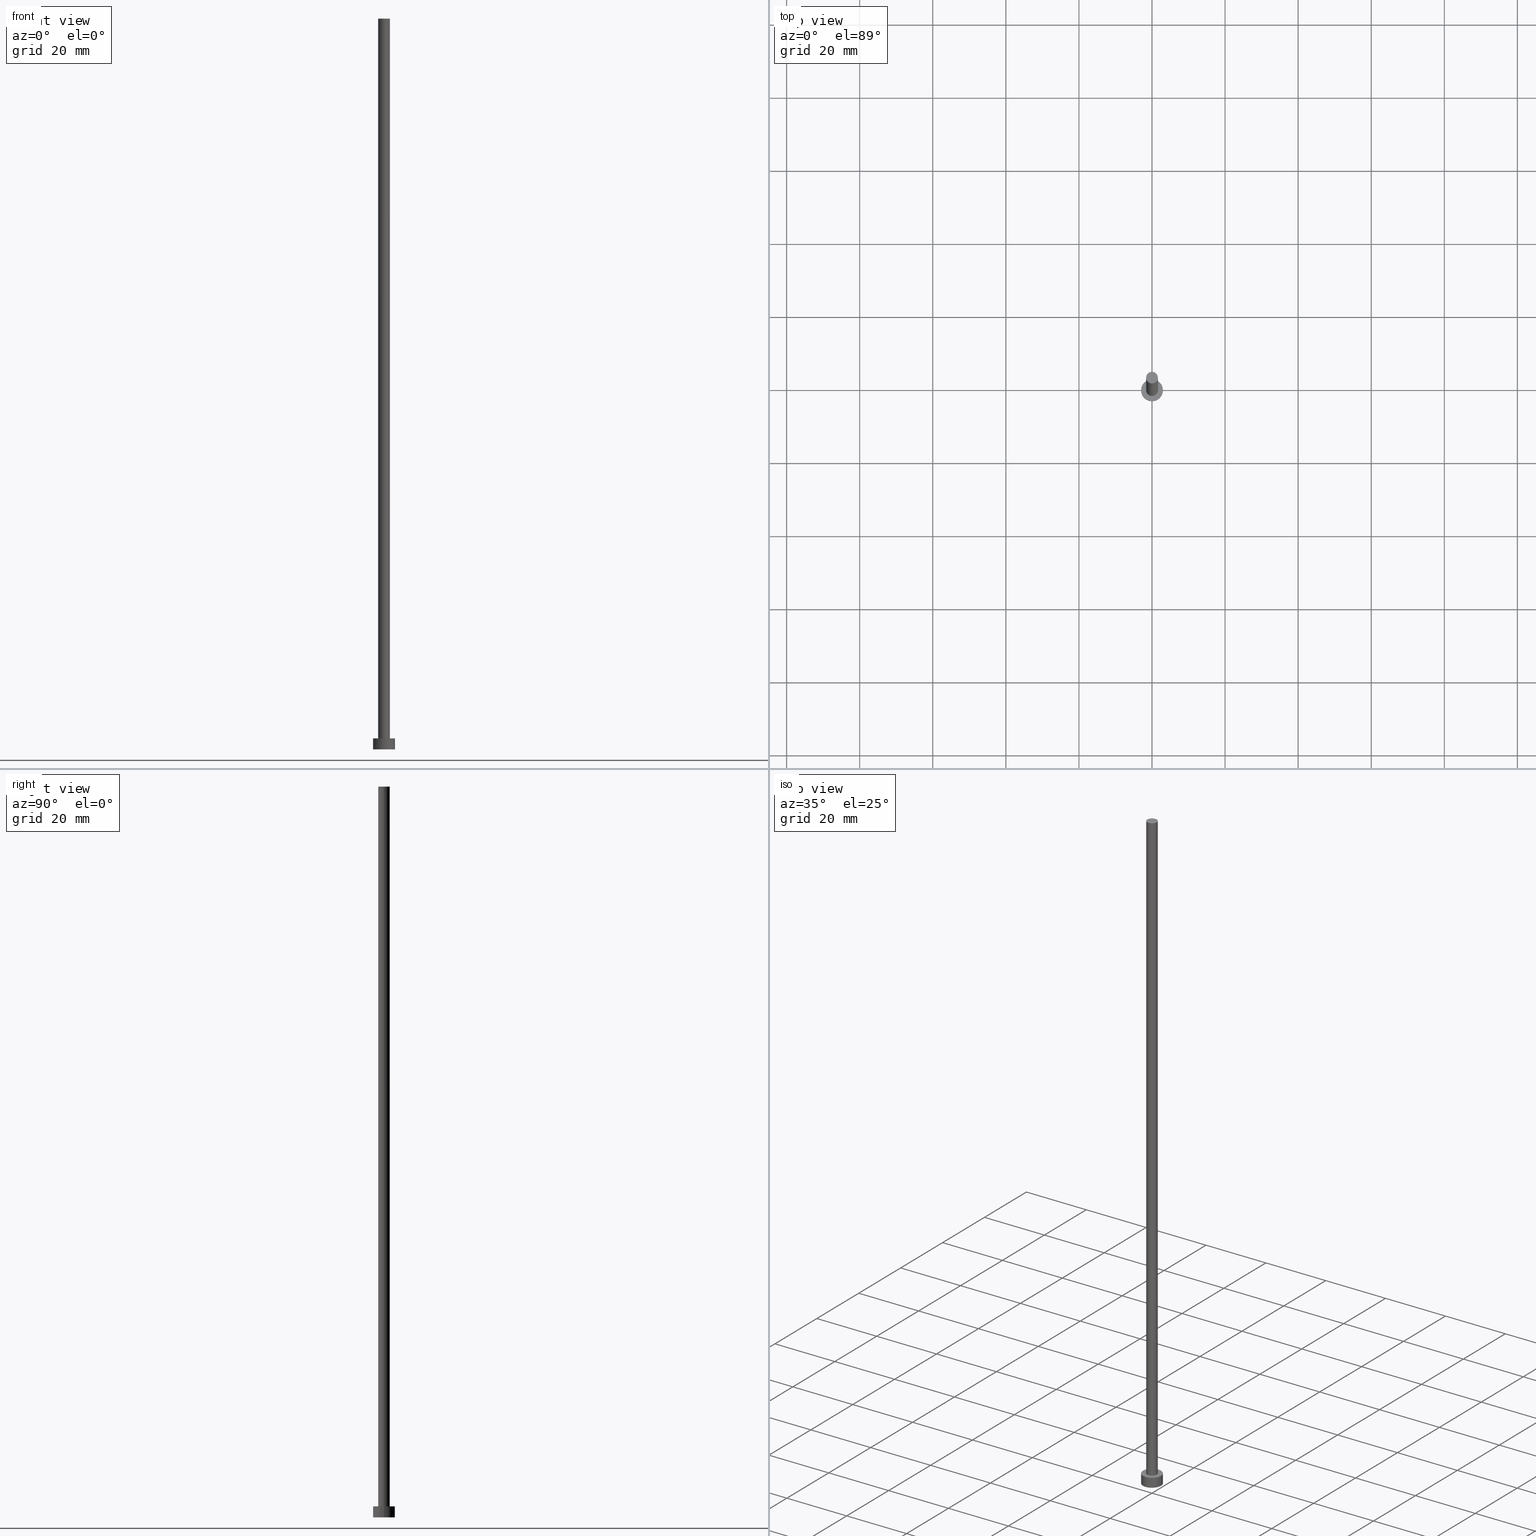
[diagram: canonical four-view strip — front | top / right | iso, engineering-drawing reading convention]
A machine part, canonical four-view strip (front | top / right | iso — engineering-drawing reading convention). The complete STEP part file that produces these views, byte-faithful:
ISO-10303-21;
HEADER;
FILE_DESCRIPTION (( 'STEP AP203' ),
    '1' );
FILE_NAME ('858f.STEP',
    '2023-02-13T14:25:23',
    ( '' ),
    ( '' ),
    'SwSTEP 2.0',
    'SolidWorks 2019',
    '' );
FILE_SCHEMA (( 'CONFIG_CONTROL_DESIGN' ));
ENDSEC;

DATA;
#1 = PLANE ( 'NONE',  #60 ) ;
#2 = MECHANICAL_CONTEXT ( 'NONE', #23, 'mechanical' ) ;
#3 = DIRECTION ( 'NONE',  ( 1.000000000000000000, 0.000000000000000000, 0.000000000000000000 ) ) ;
#4 =( NAMED_UNIT ( * ) PLANE_ANGLE_UNIT ( ) SI_UNIT ( $, .RADIAN. ) );
#5 = APPLICATION_PROTOCOL_DEFINITION ( 'international standard', 'config_control_design', 1994, #158 ) ;
#6 = CC_DESIGN_PERSON_AND_ORGANIZATION_ASSIGNMENT ( #119, #46, ( #171 ) ) ;
#7 = APPROVAL_PERSON_ORGANIZATION ( #50, #239, #198 ) ;
#8 = DESIGN_CONTEXT ( 'detailed design', #158, 'design' ) ;
#9 = ORIENTED_EDGE ( 'NONE', *, *, #53, .F. ) ;
#10 = ORIENTED_EDGE ( 'NONE', *, *, #122, .T. ) ;
#11 = CIRCLE ( 'NONE', #212, 1.600000000000000089 ) ;
#12 = EDGE_LOOP ( 'NONE', ( #34, #13, #127, #224 ) ) ;
#13 = ORIENTED_EDGE ( 'NONE', *, *, #71, .T. ) ;
#14 = ORIENTED_EDGE ( 'NONE', *, *, #167, .T. ) ;
#15 = CARTESIAN_POINT ( 'NONE',  ( 0.000000000000000000, 0.000000000000000000, 200.0000000000000000 ) ) ;
#16 = ADVANCED_FACE ( 'NONE', ( #106 ), #188, .F. ) ;
#17 = DIRECTION ( 'NONE',  ( -1.000000000000000000, 0.000000000000000000, 0.000000000000000000 ) ) ;
#18 = DIRECTION ( 'NONE',  ( 0.000000000000000000, 0.000000000000000000, 1.000000000000000000 ) ) ;
#19 = EDGE_CURVE ( 'NONE', #144, #247, #230, .T. ) ;
#20 = CARTESIAN_POINT ( 'NONE',  ( -3.000000000000000444, 0.000000000000000000, 3.000000000000000000 ) ) ;
#21 = DIRECTION ( 'NONE',  ( 1.000000000000000000, 0.000000000000000000, 0.000000000000000000 ) ) ;
#22 = APPROVAL_DATE_TIME ( #179, #252 ) ;
#23 = APPLICATION_CONTEXT ( 'configuration controlled 3d designs of mechanical parts and assemblies' ) ;
#24 = EDGE_CURVE ( 'NONE', #90, #147, #125, .T. ) ;
#25 = CARTESIAN_POINT ( 'NONE',  ( 0.000000000000000000, 0.000000000000000000, 0.000000000000000000 ) ) ;
#26 = LOCAL_TIME ( 15, 25, 23.00000000000000000, #29 ) ;
#27 = DIRECTION ( 'NONE',  ( 0.000000000000000000, 0.000000000000000000, 1.000000000000000000 ) ) ;
#28 = PRODUCT_DEFINITION ( 'NEZN�M�', '', #171, #8 ) ;
#29 = COORDINATED_UNIVERSAL_TIME_OFFSET ( 1, 0, .AHEAD. ) ;
#30 = AXIS2_PLACEMENT_3D ( 'NONE', #170, #52, #207 ) ;
#31 = VECTOR ( 'NONE', #116, 1000.000000000000000 ) ;
#32 = DIRECTION ( 'NONE',  ( 0.000000000000000000, 0.000000000000000000, 1.000000000000000000 ) ) ;
#33 = VERTEX_POINT ( 'NONE', #86 ) ;
#34 = ORIENTED_EDGE ( 'NONE', *, *, #140, .F. ) ;
#35 = ADVANCED_FACE ( 'NONE', ( #223, #204 ), #103, .T. ) ;
#36 = AXIS2_PLACEMENT_3D ( 'NONE', #231, #172, #62 ) ;
#37 = ORIENTED_EDGE ( 'NONE', *, *, #88, .F. ) ;
#38 = ORIENTED_EDGE ( 'NONE', *, *, #24, .T. ) ;
#39 = DIRECTION ( 'NONE',  ( -0.000000000000000000, -0.000000000000000000, -1.000000000000000000 ) ) ;
#40 = DIRECTION ( 'NONE',  ( -0.000000000000000000, -0.000000000000000000, -1.000000000000000000 ) ) ;
#41 = APPROVAL_PERSON_ORGANIZATION ( #67, #181, #65 ) ;
#42 = DIRECTION ( 'NONE',  ( -0.000000000000000000, -0.000000000000000000, -1.000000000000000000 ) ) ;
#43 = PRODUCT_DEFINITION_SHAPE ( 'NONE', 'NONE',  #28 ) ;
#44 = CYLINDRICAL_SURFACE ( 'NONE', #227, 1.600000000000000089 ) ;
#45 = LINE ( 'NONE', #129, #31 ) ;
#46 = PERSON_AND_ORGANIZATION_ROLE ( 'design_supplier' ) ;
#47 = ADVANCED_FACE ( 'NONE', ( #135 ), #44, .T. ) ;
#48 = COORDINATED_UNIVERSAL_TIME_OFFSET ( 1, 0, .AHEAD. ) ;
#49 = VECTOR ( 'NONE', #78, 1000.000000000000000 ) ;
#50 = PERSON_AND_ORGANIZATION ( #98, #117 ) ;
#51 = COORDINATED_UNIVERSAL_TIME_OFFSET ( 1, 0, .AHEAD. ) ;
#52 = DIRECTION ( 'NONE',  ( 0.000000000000000000, 0.000000000000000000, 1.000000000000000000 ) ) ;
#53 = EDGE_CURVE ( 'NONE', #164, #108, #142, .T. ) ;
#54 = ORIENTED_EDGE ( 'NONE', *, *, #137, .F. ) ;
#55 = ORIENTED_EDGE ( 'NONE', *, *, #130, .F. ) ;
#56 = ORIENTED_EDGE ( 'NONE', *, *, #88, .T. ) ;
#57 = CC_DESIGN_PERSON_AND_ORGANIZATION_ASSIGNMENT ( #82, #99, ( #28 ) ) ;
#58 = DIRECTION ( 'NONE',  ( 1.000000000000000000, 0.000000000000000000, 0.000000000000000000 ) ) ;
#59 = DIRECTION ( 'NONE',  ( 0.000000000000000000, 0.000000000000000000, 1.000000000000000000 ) ) ;
#60 = AXIS2_PLACEMENT_3D ( 'NONE', #173, #18, #210 ) ;
#61 = DIRECTION ( 'NONE',  ( 1.000000000000000000, 0.000000000000000000, 0.000000000000000000 ) ) ;
#62 = DIRECTION ( 'NONE',  ( 1.000000000000000000, 0.000000000000000000, -0.000000000000000000 ) ) ;
#63 = CARTESIAN_POINT ( 'NONE',  ( -1.600000000000000089, 0.000000000000000000, 3.000000000000000000 ) ) ;
#64 = ADVANCED_FACE ( 'NONE', ( #91 ), #93, .T. ) ;
#65 = APPROVAL_ROLE ( '' ) ;
#66 = DATE_TIME_ROLE ( 'creation_date' ) ;
#67 = PERSON_AND_ORGANIZATION ( #98, #117 ) ;
#68 = EDGE_LOOP ( 'NONE', ( #9, #10, #38, #248 ) ) ;
#69 = EDGE_LOOP ( 'NONE', ( #141, #55 ) ) ;
#70 = ORIENTED_EDGE ( 'NONE', *, *, #126, .F. ) ;
#71 = EDGE_CURVE ( 'NONE', #143, #33, #131, .T. ) ;
#72 = ORIENTED_EDGE ( 'NONE', *, *, #156, .T. ) ;
#73 = AXIS2_PLACEMENT_3D ( 'NONE', #25, #27, #3 ) ;
#74 = DIRECTION ( 'NONE',  ( -0.000000000000000000, -0.000000000000000000, -1.000000000000000000 ) ) ;
#75 = CARTESIAN_POINT ( 'NONE',  ( 0.000000000000000000, 0.000000000000000000, 3.000000000000000000 ) ) ;
#76 = CARTESIAN_POINT ( 'NONE',  ( 1.600000000000000089, 1.959434878635765230E-16, 200.0000000000000000 ) ) ;
#77 = CC_DESIGN_APPROVAL ( #252, ( #171 ) ) ;
#78 = DIRECTION ( 'NONE',  ( -0.000000000000000000, -0.000000000000000000, -1.000000000000000000 ) ) ;
#79 = LINE ( 'NONE', #76, #233 ) ;
#80 = DATE_TIME_ROLE ( 'classification_date' ) ;
#81 = SECURITY_CLASSIFICATION ( '', '', #184 ) ;
#82 = PERSON_AND_ORGANIZATION ( #98, #117 ) ;
#83 = DATE_AND_TIME ( #157, #238 ) ;
#84 = CALENDAR_DATE ( 2023, 13, 2 ) ;
#85 = CALENDAR_DATE ( 2023, 13, 2 ) ;
#86 = CARTESIAN_POINT ( 'NONE',  ( 3.000000000000000444, 3.673940397442060361E-16, 0.000000000000000000 ) ) ;
#87 = ADVANCED_FACE ( 'NONE', ( #153 ), #1, .T. ) ;
#88 = EDGE_CURVE ( 'NONE', #144, #143, #183, .T. ) ;
#89 = DIRECTION ( 'NONE',  ( -0.000000000000000000, -0.000000000000000000, -1.000000000000000000 ) ) ;
#90 = VERTEX_POINT ( 'NONE', #194 ) ;
#91 = FACE_OUTER_BOUND ( 'NONE', #12, .T. ) ;
#92 = CARTESIAN_POINT ( 'NONE',  ( -1.600000000000000089, 0.000000000000000000, 200.0000000000000000 ) ) ;
#93 = CYLINDRICAL_SURFACE ( 'NONE', #217, 3.000000000000000444 ) ;
#94 = CYLINDRICAL_SURFACE ( 'NONE', #121, 1.600000000000000089 ) ;
#95 = ADVANCED_FACE ( 'NONE', ( #255 ), #94, .T. ) ;
#96 = FACE_OUTER_BOUND ( 'NONE', #205, .T. ) ;
#97 = PERSON_AND_ORGANIZATION_ROLE ( 'classification_officer' ) ;
#98 = PERSON ( 'NEUR�EN�', 'NEUR�EN�', 'NEUR�EN�', ('NEUR�EN�'), ('NEUR�EN�'), ('NEUR�EN�') ) ;
#99 = PERSON_AND_ORGANIZATION_ROLE ( 'creator' ) ;
#100 = CC_DESIGN_SECURITY_CLASSIFICATION ( #81, ( #171 ) ) ;
#101 = PERSON_AND_ORGANIZATION ( #98, #117 ) ;
#102 = ORIENTED_EDGE ( 'NONE', *, *, #137, .T. ) ;
#103 = PLANE ( 'NONE',  #36 ) ;
#104 = ORIENTED_EDGE ( 'NONE', *, *, #140, .T. ) ;
#105 = CC_DESIGN_APPROVAL ( #181, ( #81 ) ) ;
#106 = FACE_OUTER_BOUND ( 'NONE', #69, .T. ) ;
#107 = MANIFOLD_SOLID_BREP ( 'P�idat vysunut�m3', #166 ) ;
#108 = VERTEX_POINT ( 'NONE', #92 ) ;
#109 = CARTESIAN_POINT ( 'NONE',  ( 1.600000000000000089, 1.959434878635765230E-16, 200.0000000000000000 ) ) ;
#110 = VECTOR ( 'NONE', #89, 1000.000000000000000 ) ;
#111 = DIRECTION ( 'NONE',  ( 1.000000000000000000, 0.000000000000000000, 0.000000000000000000 ) ) ;
#112 = PRODUCT_RELATED_PRODUCT_CATEGORY ( 'detail', '', ( #161 ) ) ;
#113 = LOCAL_TIME ( 15, 25, 23.00000000000000000, #199 ) ;
#114 = DIRECTION ( 'NONE',  ( 0.000000000000000000, 0.000000000000000000, 1.000000000000000000 ) ) ;
#115 = DIRECTION ( 'NONE',  ( 1.000000000000000000, 0.000000000000000000, 0.000000000000000000 ) ) ;
#116 = DIRECTION ( 'NONE',  ( -0.000000000000000000, -0.000000000000000000, -1.000000000000000000 ) ) ;
#117 = ORGANIZATION ( 'NEUR�EN�', 'NEUR�EN�', '' ) ;
#118 =( LENGTH_UNIT ( ) NAMED_UNIT ( * ) SI_UNIT ( .MILLI., .METRE. ) );
#119 = PERSON_AND_ORGANIZATION ( #98, #117 ) ;
#120 = PERSON_AND_ORGANIZATION_ROLE ( 'creator' ) ;
#121 = AXIS2_PLACEMENT_3D ( 'NONE', #149, #254, #234 ) ;
#122 = EDGE_CURVE ( 'NONE', #164, #90, #79, .T. ) ;
#123 = APPROVAL_STATUS ( 'not_yet_approved' ) ;
#124 = DATE_AND_TIME ( #160, #26 ) ;
#125 = CIRCLE ( 'NONE', #196, 1.600000000000000089 ) ;
#126 = EDGE_CURVE ( 'NONE', #147, #90, #11, .T. ) ;
#127 = ORIENTED_EDGE ( 'NONE', *, *, #130, .T. ) ;
#128 = ORIENTED_EDGE ( 'NONE', *, *, #126, .T. ) ;
#129 = CARTESIAN_POINT ( 'NONE',  ( -1.600000000000000089, 0.000000000000000000, 200.0000000000000000 ) ) ;
#130 = EDGE_CURVE ( 'NONE', #33, #247, #246, .T. ) ;
#131 = LINE ( 'NONE', #211, #49 ) ;
#132 = CARTESIAN_POINT ( 'NONE',  ( 0.000000000000000000, 0.000000000000000000, 3.000000000000000000 ) ) ;
#133 = AXIS2_PLACEMENT_3D ( 'NONE', #216, #253, #61 ) ;
#134 = CARTESIAN_POINT ( 'NONE',  ( 0.000000000000000000, 0.000000000000000000, 3.000000000000000000 ) ) ;
#135 = FACE_OUTER_BOUND ( 'NONE', #245, .T. ) ;
#136 = CIRCLE ( 'NONE', #242, 3.000000000000000444 ) ;
#137 = EDGE_CURVE ( 'NONE', #108, #164, #192, .T. ) ;
#138 = PERSON_AND_ORGANIZATION ( #98, #117 ) ;
#139 = APPROVAL_ROLE ( '' ) ;
#140 = EDGE_CURVE ( 'NONE', #143, #144, #136, .T. ) ;
#141 = ORIENTED_EDGE ( 'NONE', *, *, #167, .F. ) ;
#142 = CIRCLE ( 'NONE', #145, 1.600000000000000089 ) ;
#143 = VERTEX_POINT ( 'NONE', #195 ) ;
#144 = VERTEX_POINT ( 'NONE', #20 ) ;
#145 = AXIS2_PLACEMENT_3D ( 'NONE', #213, #59, #175 ) ;
#146 = CC_DESIGN_APPROVAL ( #239, ( #28 ) ) ;
#147 = VERTEX_POINT ( 'NONE', #63 ) ;
#148 = DIRECTION ( 'NONE',  ( -1.000000000000000000, 0.000000000000000000, 0.000000000000000000 ) ) ;
#149 = CARTESIAN_POINT ( 'NONE',  ( 0.000000000000000000, 0.000000000000000000, 200.0000000000000000 ) ) ;
#150 = DIRECTION ( 'NONE',  ( 1.000000000000000000, 0.000000000000000000, 0.000000000000000000 ) ) ;
#151 = APPROVAL_PERSON_ORGANIZATION ( #138, #252, #139 ) ;
#152 = DIRECTION ( 'NONE',  ( -1.000000000000000000, 0.000000000000000000, 0.000000000000000000 ) ) ;
#153 = FACE_OUTER_BOUND ( 'NONE', #165, .T. ) ;
#154 = DATE_AND_TIME ( #178, #113 ) ;
#155 = LOCAL_TIME ( 15, 25, 23.00000000000000000, #48 ) ;
#156 = EDGE_CURVE ( 'NONE', #108, #147, #45, .T. ) ;
#157 = CALENDAR_DATE ( 2023, 13, 2 ) ;
#158 = APPLICATION_CONTEXT ( 'configuration controlled 3d designs of mechanical parts and assemblies' ) ;
#159 = PERSON_AND_ORGANIZATION_ROLE ( 'design_owner' ) ;
#160 = CALENDAR_DATE ( 2023, 13, 2 ) ;
#161 = PRODUCT ( '858f', '858f', '', ( #2 ) ) ;
#162 = AXIS2_PLACEMENT_3D ( 'NONE', #251, #74, #148 ) ;
#163 = SHAPE_DEFINITION_REPRESENTATION ( #43, #214 ) ;
#164 = VERTEX_POINT ( 'NONE', #109 ) ;
#165 = EDGE_LOOP ( 'NONE', ( #102, #225 ) ) ;
#166 = CLOSED_SHELL ( 'NONE', ( #95, #64, #243, #35, #16, #47, #87 ) ) ;
#167 = EDGE_CURVE ( 'NONE', #247, #33, #176, .T. ) ;
#168 = APPROVAL_DATE_TIME ( #206, #181 ) ;
#169 = ORIENTED_EDGE ( 'NONE', *, *, #24, .F. ) ;
#170 = CARTESIAN_POINT ( 'NONE',  ( 0.000000000000000000, 0.000000000000000000, 0.000000000000000000 ) ) ;
#171 = PRODUCT_DEFINITION_FORMATION_WITH_SPECIFIED_SOURCE ( 'LIBOVOLN�', '', #161, .NOT_KNOWN. ) ;
#172 = DIRECTION ( 'NONE',  ( 0.000000000000000000, 0.000000000000000000, 1.000000000000000000 ) ) ;
#173 = CARTESIAN_POINT ( 'NONE',  ( 0.000000000000000000, 0.000000000000000000, 200.0000000000000000 ) ) ;
#174 = CARTESIAN_POINT ( 'NONE',  ( 0.000000000000000000, 0.000000000000000000, 200.0000000000000000 ) ) ;
#175 = DIRECTION ( 'NONE',  ( 1.000000000000000000, 0.000000000000000000, 0.000000000000000000 ) ) ;
#176 = CIRCLE ( 'NONE', #208, 3.000000000000000444 ) ;
#177 = DIRECTION ( 'NONE',  ( 0.000000000000000000, 0.000000000000000000, 1.000000000000000000 ) ) ;
#178 = CALENDAR_DATE ( 2023, 13, 2 ) ;
#179 = DATE_AND_TIME ( #84, #155 ) ;
#180 = PERSON_AND_ORGANIZATION ( #98, #117 ) ;
#181 = APPROVAL ( #123, 'NEUR�EN�' ) ;
#182 =( NAMED_UNIT ( * ) SI_UNIT ( $, .STERADIAN. ) SOLID_ANGLE_UNIT ( ) );
#183 = CIRCLE ( 'NONE', #200, 3.000000000000000444 ) ;
#184 = SECURITY_CLASSIFICATION_LEVEL ( 'unclassified' ) ;
#185 = DIRECTION ( 'NONE',  ( 1.000000000000000000, 0.000000000000000000, 0.000000000000000000 ) ) ;
#186 = ORIENTED_EDGE ( 'NONE', *, *, #71, .F. ) ;
#187 = CC_DESIGN_PERSON_AND_ORGANIZATION_ASSIGNMENT ( #101, #120, ( #171 ) ) ;
#188 = PLANE ( 'NONE',  #30 ) ;
#189 = CARTESIAN_POINT ( 'NONE',  ( -3.000000000000000444, 0.000000000000000000, 3.000000000000000000 ) ) ;
#190 = ORIENTED_EDGE ( 'NONE', *, *, #19, .T. ) ;
#191 = CYLINDRICAL_SURFACE ( 'NONE', #162, 3.000000000000000444 ) ;
#192 = CIRCLE ( 'NONE', #250, 1.600000000000000089 ) ;
#193 = CARTESIAN_POINT ( 'NONE',  ( 0.000000000000000000, 0.000000000000000000, 3.000000000000000000 ) ) ;
#194 = CARTESIAN_POINT ( 'NONE',  ( 1.600000000000000089, 1.959434878635765230E-16, 3.000000000000000000 ) ) ;
#195 = CARTESIAN_POINT ( 'NONE',  ( 3.000000000000000444, 3.673940397442060361E-16, 3.000000000000000000 ) ) ;
#196 = AXIS2_PLACEMENT_3D ( 'NONE', #249, #32, #185 ) ;
#197 = CARTESIAN_POINT ( 'NONE',  ( 0.000000000000000000, 0.000000000000000000, 0.000000000000000000 ) ) ;
#198 = APPROVAL_ROLE ( '' ) ;
#199 = COORDINATED_UNIVERSAL_TIME_OFFSET ( 1, 0, .AHEAD. ) ;
#200 = AXIS2_PLACEMENT_3D ( 'NONE', #75, #232, #111 ) ;
#201 = COORDINATED_UNIVERSAL_TIME_OFFSET ( 1, 0, .AHEAD. ) ;
#202 = EDGE_LOOP ( 'NONE', ( #56, #104 ) ) ;
#203 = CC_DESIGN_PERSON_AND_ORGANIZATION_ASSIGNMENT ( #240, #97, ( #81 ) ) ;
#204 = FACE_OUTER_BOUND ( 'NONE', #202, .T. ) ;
#205 = EDGE_LOOP ( 'NONE', ( #186, #37, #190, #14 ) ) ;
#206 = DATE_AND_TIME ( #85, #221 ) ;
#207 = DIRECTION ( 'NONE',  ( 1.000000000000000000, 0.000000000000000000, -0.000000000000000000 ) ) ;
#208 = AXIS2_PLACEMENT_3D ( 'NONE', #197, #177, #21 ) ;
#209 = ORIENTED_EDGE ( 'NONE', *, *, #122, .F. ) ;
#210 = DIRECTION ( 'NONE',  ( 1.000000000000000000, 0.000000000000000000, -0.000000000000000000 ) ) ;
#211 = CARTESIAN_POINT ( 'NONE',  ( 3.000000000000000444, 3.673940397442060361E-16, 3.000000000000000000 ) ) ;
#212 = AXIS2_PLACEMENT_3D ( 'NONE', #193, #235, #150 ) ;
#213 = CARTESIAN_POINT ( 'NONE',  ( 0.000000000000000000, 0.000000000000000000, 200.0000000000000000 ) ) ;
#214 = ADVANCED_BREP_SHAPE_REPRESENTATION ( '858f', ( #107, #73 ), #229 ) ;
#215 = DIRECTION ( 'NONE',  ( 0.000000000000000000, 0.000000000000000000, 1.000000000000000000 ) ) ;
#216 = CARTESIAN_POINT ( 'NONE',  ( 0.000000000000000000, 0.000000000000000000, 0.000000000000000000 ) ) ;
#217 = AXIS2_PLACEMENT_3D ( 'NONE', #132, #39, #152 ) ;
#218 = CC_DESIGN_DATE_AND_TIME_ASSIGNMENT ( #154, #80, ( #81 ) ) ;
#219 = APPROVAL_STATUS ( 'not_yet_approved' ) ;
#220 = APPROVAL_STATUS ( 'not_yet_approved' ) ;
#221 = LOCAL_TIME ( 15, 25, 23.00000000000000000, #201 ) ;
#222 = APPROVAL_DATE_TIME ( #83, #239 ) ;
#223 = FACE_BOUND ( 'NONE', #228, .T. ) ;
#224 = ORIENTED_EDGE ( 'NONE', *, *, #19, .F. ) ;
#225 = ORIENTED_EDGE ( 'NONE', *, *, #53, .T. ) ;
#226 = CC_DESIGN_PERSON_AND_ORGANIZATION_ASSIGNMENT ( #180, #159, ( #161 ) ) ;
#227 = AXIS2_PLACEMENT_3D ( 'NONE', #174, #40, #17 ) ;
#228 = EDGE_LOOP ( 'NONE', ( #70, #169 ) ) ;
#229 =( GEOMETRIC_REPRESENTATION_CONTEXT ( 3 ) GLOBAL_UNCERTAINTY_ASSIGNED_CONTEXT ( ( #244 ) ) GLOBAL_UNIT_ASSIGNED_CONTEXT ( ( #118, #4, #182 ) ) REPRESENTATION_CONTEXT ( 'NONE', 'WORKASPACE' ) );
#230 = LINE ( 'NONE', #189, #110 ) ;
#231 = CARTESIAN_POINT ( 'NONE',  ( 0.000000000000000000, 0.000000000000000000, 3.000000000000000000 ) ) ;
#232 = DIRECTION ( 'NONE',  ( 0.000000000000000000, 0.000000000000000000, 1.000000000000000000 ) ) ;
#233 = VECTOR ( 'NONE', #42, 1000.000000000000000 ) ;
#234 = DIRECTION ( 'NONE',  ( -1.000000000000000000, 0.000000000000000000, 0.000000000000000000 ) ) ;
#235 = DIRECTION ( 'NONE',  ( 0.000000000000000000, 0.000000000000000000, 1.000000000000000000 ) ) ;
#236 = CC_DESIGN_DATE_AND_TIME_ASSIGNMENT ( #124, #66, ( #28 ) ) ;
#237 = APPLICATION_PROTOCOL_DEFINITION ( 'international standard', 'config_control_design', 1994, #23 ) ;
#238 = LOCAL_TIME ( 15, 25, 23.00000000000000000, #51 ) ;
#239 = APPROVAL ( #219, 'NEUR�EN�' ) ;
#240 = PERSON_AND_ORGANIZATION ( #98, #117 ) ;
#241 = CARTESIAN_POINT ( 'NONE',  ( -3.000000000000000444, 0.000000000000000000, 0.000000000000000000 ) ) ;
#242 = AXIS2_PLACEMENT_3D ( 'NONE', #134, #215, #115 ) ;
#243 = ADVANCED_FACE ( 'NONE', ( #96 ), #191, .T. ) ;
#244 = UNCERTAINTY_MEASURE_WITH_UNIT (LENGTH_MEASURE( 1.000000000000000082E-05 ), #118, 'distance_accuracy_value', 'NONE');
#245 = EDGE_LOOP ( 'NONE', ( #209, #54, #72, #128 ) ) ;
#246 = CIRCLE ( 'NONE', #133, 3.000000000000000444 ) ;
#247 = VERTEX_POINT ( 'NONE', #241 ) ;
#248 = ORIENTED_EDGE ( 'NONE', *, *, #156, .F. ) ;
#249 = CARTESIAN_POINT ( 'NONE',  ( 0.000000000000000000, 0.000000000000000000, 3.000000000000000000 ) ) ;
#250 = AXIS2_PLACEMENT_3D ( 'NONE', #15, #114, #58 ) ;
#251 = CARTESIAN_POINT ( 'NONE',  ( 0.000000000000000000, 0.000000000000000000, 3.000000000000000000 ) ) ;
#252 = APPROVAL ( #220, 'NEUR�EN�' ) ;
#253 = DIRECTION ( 'NONE',  ( 0.000000000000000000, 0.000000000000000000, 1.000000000000000000 ) ) ;
#254 = DIRECTION ( 'NONE',  ( -0.000000000000000000, -0.000000000000000000, -1.000000000000000000 ) ) ;
#255 = FACE_OUTER_BOUND ( 'NONE', #68, .T. ) ;
ENDSEC;
END-ISO-10303-21;
